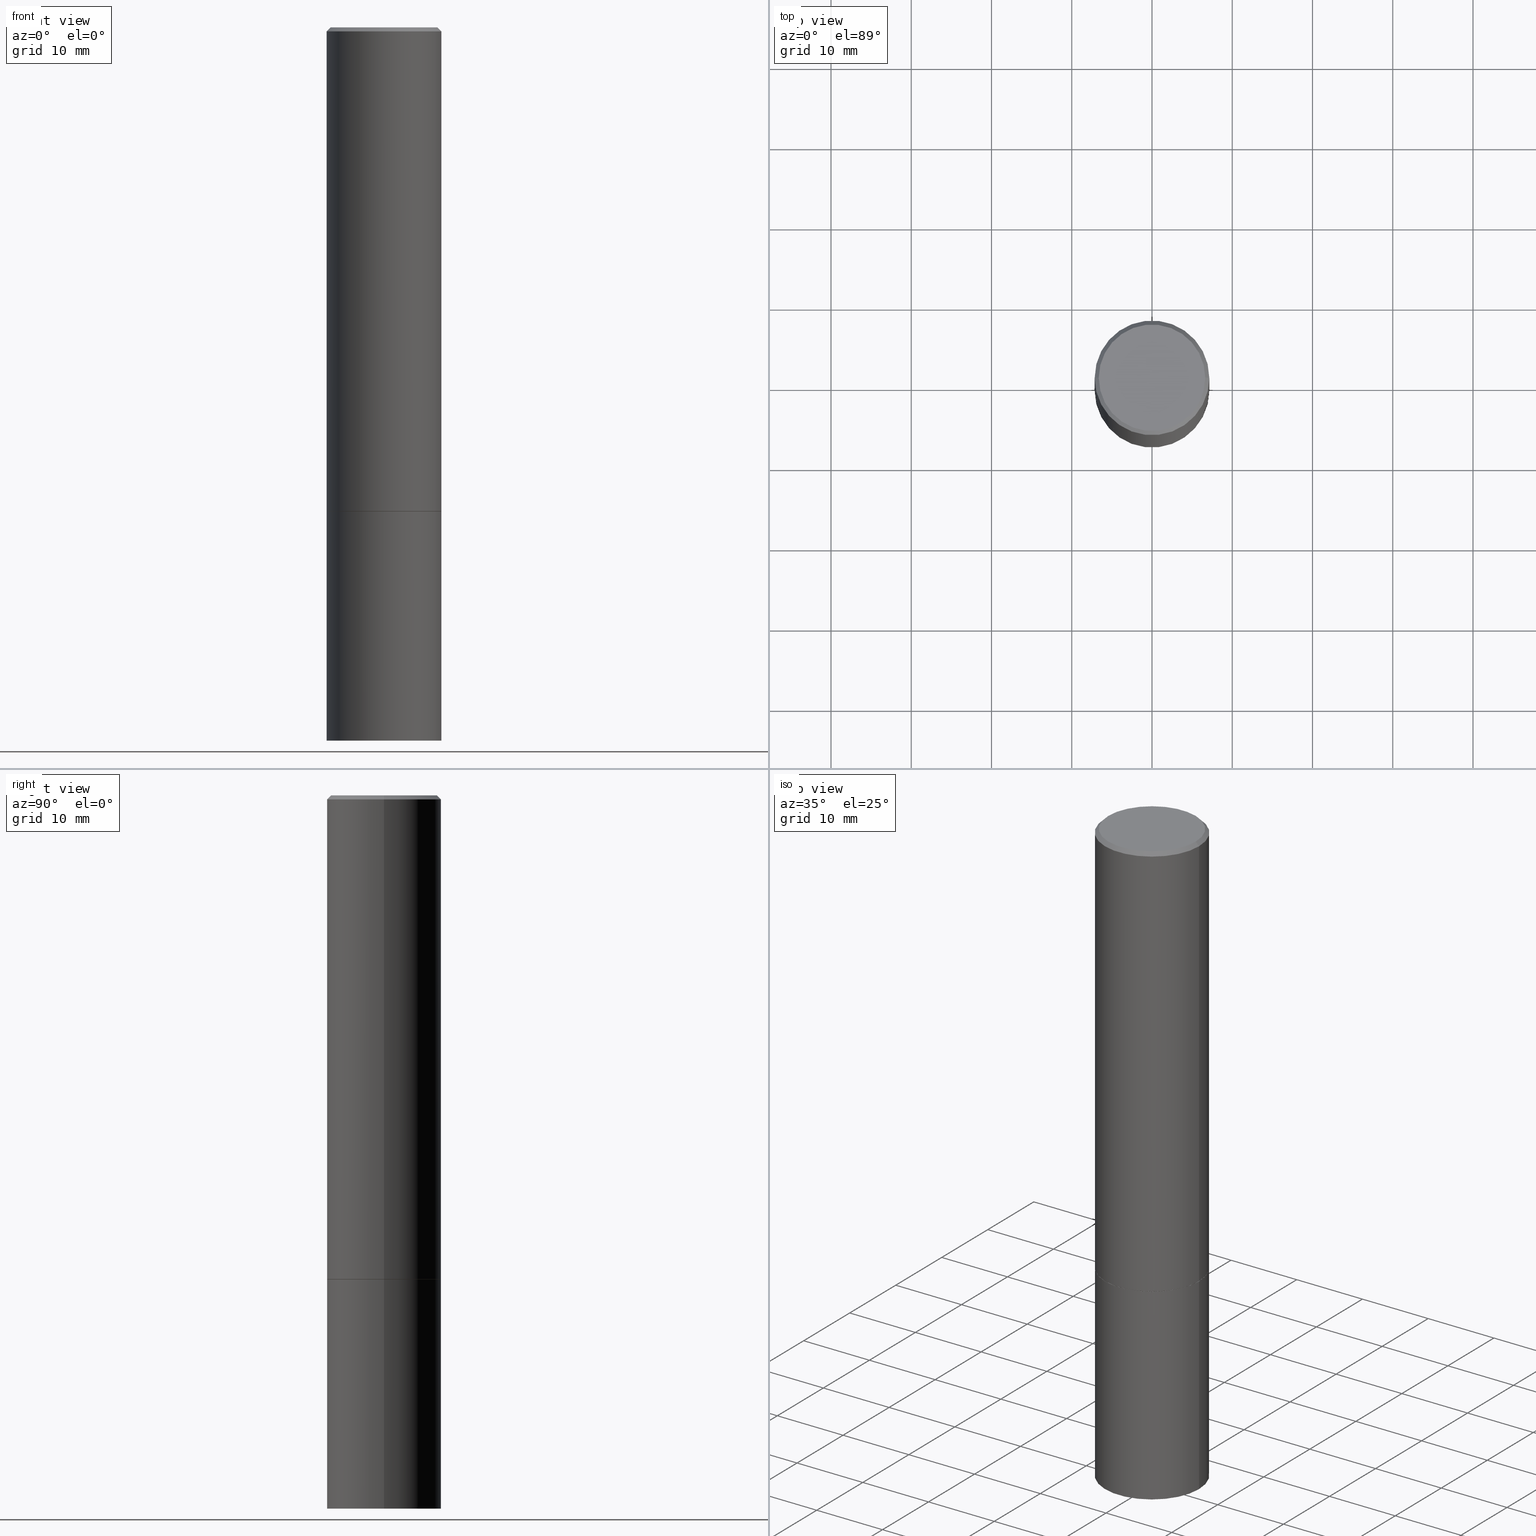
[diagram: canonical four-view strip — front | top / right | iso, engineering-drawing reading convention]
A machine part, canonical four-view strip (front | top / right | iso — engineering-drawing reading convention). The complete STEP part file that produces these views, byte-faithful:
ISO-10303-21;
HEADER;
FILE_DESCRIPTION (( 'STEP AP203' ),
    '1' );
FILE_NAME ('36827.STEP',
    '2024-02-27T19:54:21',
    ( '' ),
    ( '' ),
    'SwSTEP 2.0',
    'SolidWorks 2023',
    '' );
FILE_SCHEMA (( 'CONFIG_CONTROL_DESIGN' ));
ENDSEC;

DATA;
#1 = DIRECTION ( 'NONE',  ( -2.445468806185136597E-29, 3.491481338843145583E-15, 1.000000000000000000 ) ) ;
#2 = VERTEX_POINT ( 'NONE', #259 ) ;
#3 = DIRECTION ( 'NONE',  ( 1.000000000000000000, -6.982962677686266711E-15, 0.000000000000000000 ) ) ;
#4 = AXIS2_PLACEMENT_3D ( 'NONE', #233, #205, #292 ) ;
#5 = PRODUCT_DEFINITION ( 'UNKNOWN', '', #335, #55 ) ;
#6 = DIRECTION ( 'NONE',  ( -2.445468806185136597E-29, 3.491481338843145583E-15, 1.000000000000000000 ) ) ;
#7 = FACE_OUTER_BOUND ( 'NONE', #69, .T. ) ;
#8 = DIRECTION ( 'NONE',  ( 1.000000000000000000, -6.982962677686265922E-15, 0.000000000000000000 ) ) ;
#9 = AXIS2_PLACEMENT_3D ( 'NONE', #67, #46, #144 ) ;
#10 = CC_DESIGN_APPROVAL ( #178, ( #5 ) ) ;
#11 = CARTESIAN_POINT ( 'NONE',  ( 5.805542945883512693E-29, -8.288776698413625533E-15, -2.373999999999999222 ) ) ;
#12 = EDGE_CURVE ( 'NONE', #108, #171, #167, .T. ) ;
#13 = DIRECTION ( 'NONE',  ( 1.000000000000000000, 0.000000000000000000, 0.000000000000000000 ) ) ;
#14 = CARTESIAN_POINT ( 'NONE',  ( 0.000000000000000000, 0.000000000000000000, 0.000000000000000000 ) ) ;
#15 = ORIENTED_EDGE ( 'NONE', *, *, #65, .F. ) ;
#16 = CARTESIAN_POINT ( 'NONE',  ( 1.824298999545534733E-15, 0.2612499999999996492, -9.121494997727705218E-16 ) ) ;
#17 = COORDINATED_UNIVERSAL_TIME_OFFSET ( 5, 0, .BEHIND. ) ;
#18 = ORIENTED_EDGE ( 'NONE', *, *, #177, .T. ) ;
#19 = ORIENTED_EDGE ( 'NONE', *, *, #230, .T. ) ;
#20 = ORIENTED_EDGE ( 'NONE', *, *, #30, .T. ) ;
#21 = DIRECTION ( 'NONE',  ( 1.000000000000000000, -6.982962677686269866E-15, 0.000000000000000000 ) ) ;
#22 = CIRCLE ( 'NONE', #71, 0.2802499999999999991 ) ;
#23 = APPROVAL_STATUS ( 'not_yet_approved' ) ;
#24 = PRODUCT ( '36827', '36827', '', ( #276 ) ) ;
#25 = ORIENTED_EDGE ( 'NONE', *, *, #78, .F. ) ;
#26 = EDGE_CURVE ( 'NONE', #185, #2, #186, .T. ) ;
#27 = ORIENTED_EDGE ( 'NONE', *, *, #345, .F. ) ;
#28 = VECTOR ( 'NONE', #112, 39.37007874015748143 ) ;
#29 = CC_DESIGN_SECURITY_CLASSIFICATION ( #229, ( #335 ) ) ;
#30 = EDGE_CURVE ( 'NONE', #283, #171, #81, .T. ) ;
#31 = ORIENTED_EDGE ( 'NONE', *, *, #77, .F. ) ;
#32 = AXIS2_PLACEMENT_3D ( 'NONE', #80, #86, #180 ) ;
#33 = APPROVAL_PERSON_ORGANIZATION ( #278, #178, #50 ) ;
#34 = PERSON_AND_ORGANIZATION ( #268, #129 ) ;
#35 = CARTESIAN_POINT ( 'NONE',  ( 4.890937612370288047E-31, -6.982962677686311331E-17, -0.02000000000000005940 ) ) ;
#36 = CARTESIAN_POINT ( 'NONE',  ( 5.807988414689698296E-29, -8.292268179752468540E-15, -2.374999999999999556 ) ) ;
#37 = AXIS2_PLACEMENT_3D ( 'NONE', #116, #62, #298 ) ;
#38 = ORIENTED_EDGE ( 'NONE', *, *, #26, .F. ) ;
#39 = DIRECTION ( 'NONE',  ( -1.000000000000000000, 6.982962677686266711E-15, 0.000000000000000000 ) ) ;
#40 = AXIS2_PLACEMENT_3D ( 'NONE', #327, #277, #295 ) ;
#41 = DIRECTION ( 'NONE',  ( 1.000000000000000000, -6.982962677686269866E-15, 0.000000000000000000 ) ) ;
#42 = DIRECTION ( 'NONE',  ( -0.7071067811865232589, 7.493145998870265808E-15, 0.7071067811865715536 ) ) ;
#43 = PRODUCT_DEFINITION_SHAPE ( 'NONE', 'NONE',  #5 ) ;
#44 = FACE_OUTER_BOUND ( 'NONE', #342, .T. ) ;
#45 = DIRECTION ( 'NONE',  ( -2.445468806185136597E-29, 3.491481338843145583E-15, 1.000000000000000000 ) ) ;
#46 = DIRECTION ( 'NONE',  ( -2.445468806185136597E-29, 3.491481338843145583E-15, 1.000000000000000000 ) ) ;
#47 = PERSON_AND_ORGANIZATION_ROLE ( 'design_owner' ) ;
#48 = APPROVAL ( #143, 'UNSPECIFIED' ) ;
#49 = AXIS2_PLACEMENT_3D ( 'NONE', #362, #226, #102 ) ;
#50 = APPROVAL_ROLE ( '' ) ;
#51 = ORIENTED_EDGE ( 'NONE', *, *, #212, .F. ) ;
#52 = CIRCLE ( 'NONE', #159, 0.2812500000000000000 ) ;
#53 = ADVANCED_FACE ( 'NONE', ( #173 ), #288, .T. ) ;
#54 = ORIENTED_EDGE ( 'NONE', *, *, #319, .T. ) ;
#55 = DESIGN_CONTEXT ( 'detailed design', #208, 'design' ) ;
#56 = EDGE_CURVE ( 'NONE', #2, #267, #219, .T. ) ;
#57 = CLOSED_SHELL ( 'NONE', ( #265, #79, #231, #245 ) ) ;
#58 = COORDINATED_UNIVERSAL_TIME_OFFSET ( 5, 0, .BEHIND. ) ;
#59 = CARTESIAN_POINT ( 'NONE',  ( 4.890937612370288047E-31, -6.982962677686311331E-17, -0.02000000000000005940 ) ) ;
#60 = AXIS2_PLACEMENT_3D ( 'NONE', #254, #109, #222 ) ;
#61 = DIRECTION ( 'NONE',  ( -2.445468806185136597E-29, 3.491481338843145583E-15, 1.000000000000000000 ) ) ;
#62 = DIRECTION ( 'NONE',  ( 2.445468806185136597E-29, -3.491481338843145583E-15, -1.000000000000000000 ) ) ;
#63 = ORIENTED_EDGE ( 'NONE', *, *, #149, .F. ) ;
#64 = ORIENTED_EDGE ( 'NONE', *, *, #83, .F. ) ;
#65 = EDGE_CURVE ( 'NONE', #125, #223, #137, .T. ) ;
#66 = ORIENTED_EDGE ( 'NONE', *, *, #316, .T. ) ;
#67 = CARTESIAN_POINT ( 'NONE',  ( 0.000000000000000000, 0.000000000000000000, 0.000000000000000000 ) ) ;
#68 =( LENGTH_UNIT ( ) NAMED_UNIT ( * ) SI_UNIT ( $, .METRE. ) );
#69 = EDGE_LOOP ( 'NONE', ( #15, #104, #54, #209 ) ) ;
#70 = VECTOR ( 'NONE', #218, 39.37007874015748143 ) ;
#71 = AXIS2_PLACEMENT_3D ( 'NONE', #36, #322, #145 ) ;
#72 = ORIENTED_EDGE ( 'NONE', *, *, #56, .T. ) ;
#73 = ADVANCED_FACE ( 'NONE', ( #115 ), #264, .T. ) ;
#74 = CARTESIAN_POINT ( 'NONE',  ( 0.2802499999999999991, -1.024924347017404425E-14, -2.374999999999999556 ) ) ;
#75 = CIRCLE ( 'NONE', #293, 0.2812499999999996669 ) ;
#76 = APPROVAL_ROLE ( '' ) ;
#77 = EDGE_CURVE ( 'NONE', #171, #108, #88, .T. ) ;
#78 = EDGE_CURVE ( 'NONE', #309, #107, #242, .T. ) ;
#79 = ADVANCED_FACE ( 'NONE', ( #121 ), #359, .T. ) ;
#80 = CARTESIAN_POINT ( 'NONE',  ( 0.000000000000000000, 0.000000000000000000, 0.000000000000000000 ) ) ;
#81 = LINE ( 'NONE', #262, #28 ) ;
#82 = VECTOR ( 'NONE', #353, 39.37007874015748143 ) ;
#83 = EDGE_CURVE ( 'NONE', #223, #125, #350, .T. ) ;
#84 = CARTESIAN_POINT ( 'NONE',  ( 8.559140821647976968E-29, -1.222018468595100934E-14, -3.500000000000000000 ) ) ;
#85 = PERSON_AND_ORGANIZATION_ROLE ( 'creator' ) ;
#86 = DIRECTION ( 'NONE',  ( -2.445468806185136597E-29, 3.491481338843145583E-15, 1.000000000000000000 ) ) ;
#87 = DIRECTION ( 'NONE',  ( 1.000000000000000000, -6.982962677686269866E-15, 0.000000000000000000 ) ) ;
#88 = CIRCLE ( 'NONE', #363, 0.2812500000000000000 ) ;
#89 = APPROVAL_DATE_TIME ( #332, #178 ) ;
#90 = DIRECTION ( 'NONE',  ( 1.000000000000000000, -6.982962677686265922E-15, 0.000000000000000000 ) ) ;
#91 = ADVANCED_FACE ( 'NONE', ( #44 ), #157, .F. ) ;
#92 = DIRECTION ( 'NONE',  ( 1.000000000000000000, -6.982962677686265922E-15, 0.000000000000000000 ) ) ;
#93 = CARTESIAN_POINT ( 'NONE',  ( 0.2812499999999998335, -1.963958253099261329E-15, 1.371424718192606171E-29 ) ) ;
#94 = CARTESIAN_POINT ( 'NONE',  ( -0.2812499999999996669, 1.894128626322397242E-15, -0.02000000000000005940 ) ) ;
#95 = AXIS2_PLACEMENT_3D ( 'NONE', #16, #150, #189 ) ;
#96 = CC_DESIGN_PERSON_AND_ORGANIZATION_ASSIGNMENT ( #331, #47, ( #24 ) ) ;
#97 = DIRECTION ( 'NONE',  ( -1.000000000000000000, 6.982962677686265922E-15, -4.876176775795935793E-29 ) ) ;
#98 = CARTESIAN_POINT ( 'NONE',  ( 5.807988414689698296E-29, -8.292268179752468540E-15, -2.374999999999999556 ) ) ;
#99 =( CONVERSION_BASED_UNIT ( 'INCH', #251 ) LENGTH_UNIT ( ) NAMED_UNIT ( #176 ) );
#100 = CC_DESIGN_PERSON_AND_ORGANIZATION_ASSIGNMENT ( #136, #346, ( #335 ) ) ;
#101 = AXIS2_PLACEMENT_3D ( 'NONE', #351, #214, #330 ) ;
#102 = DIRECTION ( 'NONE',  ( 1.000000000000000000, -6.982962677686269866E-15, 0.000000000000000000 ) ) ;
#103 = DIRECTION ( 'NONE',  ( 2.438088387897960049E-29, -3.491481338843145188E-15, -1.000000000000000000 ) ) ;
#104 = ORIENTED_EDGE ( 'NONE', *, *, #149, .T. ) ;
#105 = CC_DESIGN_DATE_AND_TIME_ASSIGNMENT ( #204, #321, ( #229 ) ) ;
#106 = ADVANCED_FACE ( 'NONE', ( #274 ), #213, .T. ) ;
#107 = VERTEX_POINT ( 'NONE', #336 ) ;
#108 = VERTEX_POINT ( 'NONE', #225 ) ;
#109 = DIRECTION ( 'NONE',  ( -2.445468806185136597E-29, 3.491481338843145583E-15, 1.000000000000000000 ) ) ;
#110 = CIRCLE ( 'NONE', #349, 0.2812500000000000000 ) ;
#111 = CC_DESIGN_DATE_AND_TIME_ASSIGNMENT ( #207, #294, ( #5 ) ) ;
#112 = DIRECTION ( 'NONE',  ( -2.445468806185136877E-29, 3.491481338843145188E-15, 1.000000000000000000 ) ) ;
#113 = PERSON_AND_ORGANIZATION ( #268, #129 ) ;
#114 = CIRCLE ( 'NONE', #120, 0.2812499999999996669 ) ;
#115 = FACE_OUTER_BOUND ( 'NONE', #163, .T. ) ;
#116 = CARTESIAN_POINT ( 'NONE',  ( 4.890937612370288047E-31, -6.982962677686311331E-17, -0.02000000000000005940 ) ) ;
#117 = CARTESIAN_POINT ( 'NONE',  ( 5.807988414689698296E-29, -8.292268179752468540E-15, -2.374999999999999556 ) ) ;
#118 = DIRECTION ( 'NONE',  ( -2.445468806185136597E-29, 3.491481338843145583E-15, 1.000000000000000000 ) ) ;
#119 = APPLICATION_PROTOCOL_DEFINITION ( 'international standard', 'config_control_design', 1994, #314 ) ;
#120 = AXIS2_PLACEMENT_3D ( 'NONE', #304, #239, #3 ) ;
#121 = FACE_OUTER_BOUND ( 'NONE', #313, .T. ) ;
#122 = COORDINATED_UNIVERSAL_TIME_OFFSET ( 5, 0, .BEHIND. ) ;
#123 = ORIENTED_EDGE ( 'NONE', *, *, #65, .T. ) ;
#124 =( NAMED_UNIT ( * ) SI_UNIT ( $, .STERADIAN. ) SOLID_ANGLE_UNIT ( ) );
#125 = VERTEX_POINT ( 'NONE', #280 ) ;
#126 = ORIENTED_EDGE ( 'NONE', *, *, #193, .T. ) ;
#127 = MANIFOLD_SOLID_BREP ( 'Body-Move/Copy2[1]', #57 ) ;
#128 = CLOSED_SHELL ( 'NONE', ( #142, #53, #338, #302, #73, #106, #91, #206 ) ) ;
#129 = ORGANIZATION ( 'UNSPECIFIED', 'UNSPECIFIED', '' ) ;
#130 = CYLINDRICAL_SURFACE ( 'NONE', #60, 0.2812500000000000000 ) ;
#131 = ORIENTED_EDGE ( 'NONE', *, *, #179, .T. ) ;
#132 = FACE_OUTER_BOUND ( 'NONE', #307, .T. ) ;
#133 = CYLINDRICAL_SURFACE ( 'NONE', #140, 0.2812500000000000000 ) ;
#134 = CALENDAR_DATE ( 2024, 27, 2 ) ;
#135 = ORIENTED_EDGE ( 'NONE', *, *, #26, .T. ) ;
#136 = PERSON_AND_ORGANIZATION ( #268, #129 ) ;
#137 = CIRCLE ( 'NONE', #347, 0.2612499999999996492 ) ;
#138 = LOCAL_TIME ( 14, 54, 21.00000000000000000, #122 ) ;
#139 = CARTESIAN_POINT ( 'NONE',  ( 0.000000000000000000, 0.000000000000000000, 0.000000000000000000 ) ) ;
#140 = AXIS2_PLACEMENT_3D ( 'NONE', #139, #1, #221 ) ;
#141 = MANIFOLD_SOLID_BREP ( 'Body-Move/Copy2[2]', #128 ) ;
#142 = ADVANCED_FACE ( 'NONE', ( #238 ), #323, .T. ) ;
#143 = APPROVAL_STATUS ( 'not_yet_approved' ) ;
#144 = DIRECTION ( 'NONE',  ( 1.000000000000000000, -6.982962677686266711E-15, 4.876176775795934672E-29 ) ) ;
#145 = DIRECTION ( 'NONE',  ( 1.000000000000000000, -6.982962677686265922E-15, 0.000000000000000000 ) ) ;
#146 = VECTOR ( 'NONE', #317, 39.37007874015748143 ) ;
#147 = ORIENTED_EDGE ( 'NONE', *, *, #161, .F. ) ;
#148 = LINE ( 'NONE', #273, #82 ) ;
#149 = EDGE_CURVE ( 'NONE', #125, #107, #184, .T. ) ;
#150 = DIRECTION ( 'NONE',  ( 2.438088387897960049E-29, -3.491481338843145188E-15, -1.000000000000000000 ) ) ;
#151 = ORIENTED_EDGE ( 'NONE', *, *, #77, .T. ) ;
#152 = DIRECTION ( 'NONE',  ( -2.445468806185136597E-29, 3.491481338843145583E-15, 1.000000000000000000 ) ) ;
#153 =( NAMED_UNIT ( * ) PLANE_ANGLE_UNIT ( ) SI_UNIT ( $, .RADIAN. ) );
#154 = CARTESIAN_POINT ( 'NONE',  ( -0.2802499999999999991, -6.300972162784787775E-15, -2.374999999999999556 ) ) ;
#155 = UNCERTAINTY_MEASURE_WITH_UNIT (LENGTH_MEASURE( 1.000000000000000082E-05 ), #99, 'distance_accuracy_value', 'NONE');
#156 = PRODUCT_RELATED_PRODUCT_CATEGORY ( 'detail', '', ( #24 ) ) ;
#157 = PLANE ( 'NONE',  #40 ) ;
#158 = APPLICATION_PROTOCOL_DEFINITION ( 'international standard', 'config_control_design', 1994, #208 ) ;
#159 = AXIS2_PLACEMENT_3D ( 'NONE', #11, #210, #41 ) ;
#160 = CALENDAR_DATE ( 2024, 27, 2 ) ;
#161 = EDGE_CURVE ( 'NONE', #267, #309, #52, .T. ) ;
#162 = ORIENTED_EDGE ( 'NONE', *, *, #179, .F. ) ;
#163 = EDGE_LOOP ( 'NONE', ( #272, #361, #255, #348 ) ) ;
#164 = EDGE_CURVE ( 'NONE', #267, #165, #148, .T. ) ;
#165 = VERTEX_POINT ( 'NONE', #94 ) ;
#166 = EDGE_LOOP ( 'NONE', ( #310, #328, #131, #147 ) ) ;
#167 = CIRCLE ( 'NONE', #49, 0.2812500000000000000 ) ;
#168 = EDGE_LOOP ( 'NONE', ( #63, #64, #126, #19 ) ) ;
#169 = APPROVAL_PERSON_ORGANIZATION ( #343, #337, #76 ) ;
#170 = SHAPE_DEFINITION_REPRESENTATION ( #43, #203 ) ;
#171 = VERTEX_POINT ( 'NONE', #188 ) ;
#172 = AXIS2_PLACEMENT_3D ( 'NONE', #35, #291, #39 ) ;
#173 = FACE_OUTER_BOUND ( 'NONE', #364, .T. ) ;
#174 = CALENDAR_DATE ( 2024, 27, 2 ) ;
#175 = DIRECTION ( 'NONE',  ( 1.000000000000000000, -6.982962677686266711E-15, 0.000000000000000000 ) ) ;
#176 = DIMENSIONAL_EXPONENTS ( 1.000000000000000000, 0.000000000000000000, 0.000000000000000000, 0.000000000000000000, 0.000000000000000000, 0.000000000000000000, 0.000000000000000000 ) ;
#177 = EDGE_CURVE ( 'NONE', #309, #267, #110, .T. ) ;
#178 = APPROVAL ( #23, 'UNSPECIFIED' ) ;
#179 = EDGE_CURVE ( 'NONE', #185, #309, #243, .T. ) ;
#180 = DIRECTION ( 'NONE',  ( 1.000000000000000000, -6.982962677686266711E-15, 4.876176775795935793E-29 ) ) ;
#181 = FACE_OUTER_BOUND ( 'NONE', #168, .T. ) ;
#182 = CALENDAR_DATE ( 2024, 27, 2 ) ;
#183 = DIRECTION ( 'NONE',  ( -2.445468806185136597E-29, 3.491481338843145583E-15, 1.000000000000000000 ) ) ;
#184 = LINE ( 'NONE', #275, #70 ) ;
#185 = VERTEX_POINT ( 'NONE', #74 ) ;
#186 = CIRCLE ( 'NONE', #334, 0.2802499999999999991 ) ;
#187 = LOCAL_TIME ( 14, 54, 21.00000000000000000, #58 ) ;
#188 = CARTESIAN_POINT ( 'NONE',  ( 0.2812500000000000000, -1.025622643285173184E-14, -2.374999999999999556 ) ) ;
#189 = DIRECTION ( 'NONE',  ( -1.000000000000000000, 6.982962677686265922E-15, -4.876176775795935793E-29 ) ) ;
#190 = ORIENTED_EDGE ( 'NONE', *, *, #177, .F. ) ;
#191 = VECTOR ( 'NONE', #250, 39.37007874015748854 ) ;
#192 = CARTESIAN_POINT ( 'NONE',  ( -0.2812499999999996669, 1.894128626322397242E-15, -0.02000000000000005940 ) ) ;
#193 = EDGE_CURVE ( 'NONE', #223, #165, #358, .T. ) ;
#194 = VERTEX_POINT ( 'NONE', #305 ) ;
#195 = CARTESIAN_POINT ( 'NONE',  ( 0.000000000000000000, 0.000000000000000000, 0.000000000000000000 ) ) ;
#196 = ORIENTED_EDGE ( 'NONE', *, *, #12, .T. ) ;
#197 = CARTESIAN_POINT ( 'NONE',  ( -0.2812500000000000000, 1.998401444325281773E-15, -1.383450494134192269E-29 ) ) ;
#198 = DATE_AND_TIME ( #134, #187 ) ;
#199 = CONICAL_SURFACE ( 'NONE', #37, 0.2812499999999996669, 0.7853981633974473908 ) ;
#200 = ORIENTED_EDGE ( 'NONE', *, *, #12, .F. ) ;
#201 = COORDINATED_UNIVERSAL_TIME_OFFSET ( 5, 0, .BEHIND. ) ;
#202 = ORIENTED_EDGE ( 'NONE', *, *, #164, .T. ) ;
#203 = ADVANCED_BREP_SHAPE_REPRESENTATION ( '36827', ( #127, #141, #329 ), #261 ) ;
#204 = DATE_AND_TIME ( #174, #324 ) ;
#205 = DIRECTION ( 'NONE',  ( -2.445468806185136597E-29, 3.491481338843145583E-15, 1.000000000000000000 ) ) ;
#206 = ADVANCED_FACE ( 'NONE', ( #360 ), #325, .F. ) ;
#207 = DATE_AND_TIME ( #182, #220 ) ;
#208 = APPLICATION_CONTEXT ( 'configuration controlled 3d designs of mechanical parts and assemblies' ) ;
#209 = ORIENTED_EDGE ( 'NONE', *, *, #193, .F. ) ;
#210 = DIRECTION ( 'NONE',  ( -2.445468806185136597E-29, 3.491481338843145583E-15, 1.000000000000000000 ) ) ;
#211 = CC_DESIGN_PERSON_AND_ORGANIZATION_ASSIGNMENT ( #34, #263, ( #335 ) ) ;
#212 = EDGE_CURVE ( 'NONE', #283, #194, #286, .T. ) ;
#213 = CONICAL_SURFACE ( 'NONE', #306, 0.2802499999999999991, 0.7853981633974141952 ) ;
#214 = DIRECTION ( 'NONE',  ( -2.445468806185136597E-29, 3.491481338843145583E-15, 1.000000000000000000 ) ) ;
#215 = EDGE_LOOP ( 'NONE', ( #252, #352, #31, #241 ) ) ;
#216 = DIRECTION ( 'NONE',  ( -0.7071067811865469066, 2.468850131082250355E-15, -0.7071067811865481278 ) ) ;
#217 = DIRECTION ( 'NONE',  ( -2.445468806185136877E-29, 3.491481338843145188E-15, 1.000000000000000000 ) ) ;
#218 = DIRECTION ( 'NONE',  ( 0.7071067811865469066, -7.319954787623254468E-15, -0.7071067811865481278 ) ) ;
#219 = LINE ( 'NONE', #154, #232 ) ;
#220 = LOCAL_TIME ( 14, 54, 21.00000000000000000, #17 ) ;
#221 = DIRECTION ( 'NONE',  ( 1.000000000000000000, -6.982962677686266711E-15, 4.876176775795935793E-29 ) ) ;
#222 = DIRECTION ( 'NONE',  ( 1.000000000000000000, -6.982962677686266711E-15, 4.876176775795935793E-29 ) ) ;
#223 = VERTEX_POINT ( 'NONE', #357 ) ;
#224 = APPROVAL_STATUS ( 'not_yet_approved' ) ;
#225 = CARTESIAN_POINT ( 'NONE',  ( -0.2812500000000000000, -8.257824988526456379E-15, -2.374999999999999556 ) ) ;
#226 = DIRECTION ( 'NONE',  ( -2.445468806185136597E-29, 3.491481338843145583E-15, 1.000000000000000000 ) ) ;
#227 = APPROVAL_DATE_TIME ( #289, #48 ) ;
#228 = CONICAL_SURFACE ( 'NONE', #172, 0.2812499999999996669, 0.7853981633974473908 ) ;
#229 = SECURITY_CLASSIFICATION ( '', '', #318 ) ;
#230 = EDGE_CURVE ( 'NONE', #165, #107, #114, .T. ) ;
#231 = ADVANCED_FACE ( 'NONE', ( #132 ), #253, .F. ) ;
#232 = VECTOR ( 'NONE', #42, 39.37007874015748854 ) ;
#233 = CARTESIAN_POINT ( 'NONE',  ( 0.000000000000000000, 0.000000000000000000, 0.000000000000000000 ) ) ;
#234 = DIRECTION ( 'NONE',  ( -2.445468806185136597E-29, 3.491481338843145583E-15, 1.000000000000000000 ) ) ;
#235 = PERSON_AND_ORGANIZATION ( #268, #129 ) ;
#236 = ORIENTED_EDGE ( 'NONE', *, *, #319, .F. ) ;
#237 = CC_DESIGN_APPROVAL ( #337, ( #229 ) ) ;
#238 = FACE_OUTER_BOUND ( 'NONE', #240, .T. ) ;
#239 = DIRECTION ( 'NONE',  ( -2.445468806185136597E-29, 3.491481338843145583E-15, 1.000000000000000000 ) ) ;
#240 = EDGE_LOOP ( 'NONE', ( #135, #72, #190, #162 ) ) ;
#241 = ORIENTED_EDGE ( 'NONE', *, *, #30, .F. ) ;
#242 = LINE ( 'NONE', #93, #279 ) ;
#243 = LINE ( 'NONE', #356, #191 ) ;
#244 = AXIS2_PLACEMENT_3D ( 'NONE', #84, #234, #87 ) ;
#245 = ADVANCED_FACE ( 'NONE', ( #257 ), #130, .T. ) ;
#246 = DIRECTION ( 'NONE',  ( 1.000000000000000000, -6.982962677686269866E-15, 0.000000000000000000 ) ) ;
#247 = CALENDAR_DATE ( 2024, 27, 2 ) ;
#248 = ORIENTED_EDGE ( 'NONE', *, *, #316, .F. ) ;
#249 = EDGE_CURVE ( 'NONE', #194, #108, #341, .T. ) ;
#250 = DIRECTION ( 'NONE',  ( 0.7071067811865232589, -2.468850131082003836E-15, 0.7071067811865715536 ) ) ;
#251 = LENGTH_MEASURE_WITH_UNIT ( LENGTH_MEASURE( 0.02539999999999999897 ), #68 );
#252 = ORIENTED_EDGE ( 'NONE', *, *, #212, .T. ) ;
#253 = PLANE ( 'NONE',  #315 ) ;
#254 = CARTESIAN_POINT ( 'NONE',  ( 0.000000000000000000, 0.000000000000000000, 0.000000000000000000 ) ) ;
#255 = ORIENTED_EDGE ( 'NONE', *, *, #78, .T. ) ;
#256 = CARTESIAN_POINT ( 'NONE',  ( 5.807988414689698296E-29, -8.292268179752468540E-15, -2.374999999999999556 ) ) ;
#257 = FACE_OUTER_BOUND ( 'NONE', #326, .T. ) ;
#258 = APPROVAL_DATE_TIME ( #198, #337 ) ;
#259 = CARTESIAN_POINT ( 'NONE',  ( -0.2802499999999999991, -6.295673708436564585E-15, -2.374999999999999556 ) ) ;
#260 = AXIS2_PLACEMENT_3D ( 'NONE', #98, #45, #90 ) ;
#261 =( GEOMETRIC_REPRESENTATION_CONTEXT ( 3 ) GLOBAL_UNCERTAINTY_ASSIGNED_CONTEXT ( ( #155 ) ) GLOBAL_UNIT_ASSIGNED_CONTEXT ( ( #99, #153, #124 ) ) REPRESENTATION_CONTEXT ( 'NONE', 'WORKASPACE' ) );
#262 = CARTESIAN_POINT ( 'NONE',  ( 0.2812500000000000000, -1.963958253099262512E-15, 1.371424718192607012E-29 ) ) ;
#263 = PERSON_AND_ORGANIZATION_ROLE ( 'design_supplier' ) ;
#264 = CYLINDRICAL_SURFACE ( 'NONE', #32, 0.2812499999999998335 ) ;
#265 = ADVANCED_FACE ( 'NONE', ( #284 ), #133, .T. ) ;
#266 = DIRECTION ( 'NONE',  ( 2.438088387897960049E-29, -3.491481338843145188E-15, -1.000000000000000000 ) ) ;
#267 = VERTEX_POINT ( 'NONE', #366 ) ;
#268 = PERSON ( 'UNSPECIFIED', 'UNSPECIFIED', 'UNSPECIFIED', ('UNSPECIFIED'), ('UNSPECIFIED'), ('UNSPECIFIED') ) ;
#269 = APPROVAL_ROLE ( '' ) ;
#270 = VECTOR ( 'NONE', #216, 39.37007874015748143 ) ;
#271 = CC_DESIGN_PERSON_AND_ORGANIZATION_ASSIGNMENT ( #113, #365, ( #229 ) ) ;
#272 = ORIENTED_EDGE ( 'NONE', *, *, #164, .F. ) ;
#273 = CARTESIAN_POINT ( 'NONE',  ( -0.2812499999999998335, 1.998401444325280589E-15, -1.383450494134191428E-29 ) ) ;
#274 = FACE_OUTER_BOUND ( 'NONE', #166, .T. ) ;
#275 = CARTESIAN_POINT ( 'NONE',  ( 0.2812499999999996669, -1.999344688650103789E-15, -0.02000000000000005940 ) ) ;
#276 = MECHANICAL_CONTEXT ( 'NONE', #314, 'mechanical' ) ;
#277 = DIRECTION ( 'NONE',  ( -2.438088387897960049E-29, 3.491481338843145188E-15, 1.000000000000000000 ) ) ;
#278 = PERSON_AND_ORGANIZATION ( #268, #129 ) ;
#279 = VECTOR ( 'NONE', #217, 39.37007874015748143 ) ;
#280 = CARTESIAN_POINT ( 'NONE',  ( 0.2612499999999996492, -1.895824895283957203E-15, 1.300802449975685690E-29 ) ) ;
#281 = CARTESIAN_POINT ( 'NONE',  ( 1.963958253099320494E-15, 0.2812499999999917288, -2.375000000000000444 ) ) ;
#282 = AXIS2_PLACEMENT_3D ( 'NONE', #297, #266, #97 ) ;
#283 = VERTEX_POINT ( 'NONE', #339 ) ;
#284 = FACE_OUTER_BOUND ( 'NONE', #215, .T. ) ;
#285 = CC_DESIGN_PERSON_AND_ORGANIZATION_ASSIGNMENT ( #235, #85, ( #5 ) ) ;
#286 = CIRCLE ( 'NONE', #101, 0.2812500000000000000 ) ;
#287 = CC_DESIGN_APPROVAL ( #48, ( #335 ) ) ;
#288 = CYLINDRICAL_SURFACE ( 'NONE', #4, 0.2812499999999998335 ) ;
#289 = DATE_AND_TIME ( #160, #355 ) ;
#290 = DIRECTION ( 'NONE',  ( 1.000000000000000000, -6.982962677686266711E-15, 4.876176775795934672E-29 ) ) ;
#291 = DIRECTION ( 'NONE',  ( 2.445468806185136597E-29, -3.491481338843145583E-15, -1.000000000000000000 ) ) ;
#292 = DIRECTION ( 'NONE',  ( 1.000000000000000000, -6.982962677686266711E-15, 4.876176775795935793E-29 ) ) ;
#293 = AXIS2_PLACEMENT_3D ( 'NONE', #59, #61, #175 ) ;
#294 = DATE_TIME_ROLE ( 'creation_date' ) ;
#295 = DIRECTION ( 'NONE',  ( 1.000000000000000000, -6.982962677686265922E-15, 4.876176775795935793E-29 ) ) ;
#296 = PERSON_AND_ORGANIZATION ( #268, #129 ) ;
#297 = CARTESIAN_POINT ( 'NONE',  ( 1.963958253099348104E-15, 0.2812499999999877875, -3.500000000000000888 ) ) ;
#298 = DIRECTION ( 'NONE',  ( -1.000000000000000000, 6.982962677686266711E-15, 0.000000000000000000 ) ) ;
#299 = ORIENTED_EDGE ( 'NONE', *, *, #249, .F. ) ;
#300 = APPROVAL_PERSON_ORGANIZATION ( #296, #48, #269 ) ;
#301 = CARTESIAN_POINT ( 'NONE',  ( 5.805542945883512693E-29, -8.288776698413625533E-15, -2.373999999999999222 ) ) ;
#302 = ADVANCED_FACE ( 'NONE', ( #181 ), #199, .T. ) ;
#303 = CARTESIAN_POINT ( 'NONE',  ( 5.807988414689698296E-29, -8.292268179752468540E-15, -2.374999999999999556 ) ) ;
#304 = CARTESIAN_POINT ( 'NONE',  ( 4.890937612370288047E-31, -6.982962677686311331E-17, -0.02000000000000005940 ) ) ;
#305 = CARTESIAN_POINT ( 'NONE',  ( -0.2812500000000000000, -8.257824988526456379E-15, -3.500000000000000000 ) ) ;
#306 = AXIS2_PLACEMENT_3D ( 'NONE', #117, #6, #92 ) ;
#307 = EDGE_LOOP ( 'NONE', ( #151, #196 ) ) ;
#308 = DIRECTION ( 'NONE',  ( 0.000000000000000000, 0.000000000000000000, 1.000000000000000000 ) ) ;
#309 = VERTEX_POINT ( 'NONE', #320 ) ;
#310 = ORIENTED_EDGE ( 'NONE', *, *, #56, .F. ) ;
#311 = DIRECTION ( 'NONE',  ( -1.000000000000000000, 6.982962677686265922E-15, -4.876176775795935793E-29 ) ) ;
#312 = COORDINATED_UNIVERSAL_TIME_OFFSET ( 5, 0, .BEHIND. ) ;
#313 = EDGE_LOOP ( 'NONE', ( #51, #248 ) ) ;
#314 = APPLICATION_CONTEXT ( 'configuration controlled 3d designs of mechanical parts and assemblies' ) ;
#315 = AXIS2_PLACEMENT_3D ( 'NONE', #281, #103, #311 ) ;
#316 = EDGE_CURVE ( 'NONE', #194, #283, #354, .T. ) ;
#317 = DIRECTION ( 'NONE',  ( -2.445468806185136877E-29, 3.491481338843145188E-15, 1.000000000000000000 ) ) ;
#318 = SECURITY_CLASSIFICATION_LEVEL ( 'unclassified' ) ;
#319 = EDGE_CURVE ( 'NONE', #107, #165, #75, .T. ) ;
#320 = CARTESIAN_POINT ( 'NONE',  ( 0.2812500000000000000, -1.025273495151288883E-14, -2.373999999999999222 ) ) ;
#321 = DATE_TIME_ROLE ( 'classification_date' ) ;
#322 = DIRECTION ( 'NONE',  ( -2.445468806185136597E-29, 3.491481338843145583E-15, 1.000000000000000000 ) ) ;
#323 = CONICAL_SURFACE ( 'NONE', #260, 0.2802499999999999991, 0.7853981633974141952 ) ;
#324 = LOCAL_TIME ( 14, 54, 21.00000000000000000, #201 ) ;
#325 = PLANE ( 'NONE',  #95 ) ;
#326 = EDGE_LOOP ( 'NONE', ( #299, #66, #20, #200 ) ) ;
#327 = CARTESIAN_POINT ( 'NONE',  ( 5.807988414689698296E-29, -8.292268179752468540E-15, -2.374999999999999556 ) ) ;
#328 = ORIENTED_EDGE ( 'NONE', *, *, #345, .T. ) ;
#329 = AXIS2_PLACEMENT_3D ( 'NONE', #195, #308, #13 ) ;
#330 = DIRECTION ( 'NONE',  ( 1.000000000000000000, -6.982962677686269866E-15, 0.000000000000000000 ) ) ;
#331 = PERSON_AND_ORGANIZATION ( #268, #129 ) ;
#332 = DATE_AND_TIME ( #247, #138 ) ;
#333 = ORIENTED_EDGE ( 'NONE', *, *, #83, .T. ) ;
#334 = AXIS2_PLACEMENT_3D ( 'NONE', #256, #344, #8 ) ;
#335 = PRODUCT_DEFINITION_FORMATION_WITH_SPECIFIED_SOURCE ( 'ANY', '', #24, .NOT_KNOWN. ) ;
#336 = CARTESIAN_POINT ( 'NONE',  ( 0.2812499999999996669, -1.999344688650103789E-15, -0.02000000000000005940 ) ) ;
#337 = APPROVAL ( #224, 'UNSPECIFIED' ) ;
#338 = ADVANCED_FACE ( 'NONE', ( #7 ), #228, .T. ) ;
#339 = CARTESIAN_POINT ( 'NONE',  ( 0.2812500000000000000, -1.418414293905027264E-14, -3.500000000000000000 ) ) ;
#340 = EDGE_LOOP ( 'NONE', ( #333, #123 ) ) ;
#341 = LINE ( 'NONE', #197, #146 ) ;
#342 = EDGE_LOOP ( 'NONE', ( #38, #27 ) ) ;
#343 = PERSON_AND_ORGANIZATION ( #268, #129 ) ;
#344 = DIRECTION ( 'NONE',  ( -2.445468806185136597E-29, 3.491481338843145583E-15, 1.000000000000000000 ) ) ;
#345 = EDGE_CURVE ( 'NONE', #2, #185, #22, .T. ) ;
#346 = PERSON_AND_ORGANIZATION_ROLE ( 'creator' ) ;
#347 = AXIS2_PLACEMENT_3D ( 'NONE', #14, #118, #290 ) ;
#348 = ORIENTED_EDGE ( 'NONE', *, *, #230, .F. ) ;
#349 = AXIS2_PLACEMENT_3D ( 'NONE', #301, #152, #21 ) ;
#350 = CIRCLE ( 'NONE', #9, 0.2612499999999996492 ) ;
#351 = CARTESIAN_POINT ( 'NONE',  ( 8.559140821647976968E-29, -1.222018468595100934E-14, -3.500000000000000000 ) ) ;
#352 = ORIENTED_EDGE ( 'NONE', *, *, #249, .T. ) ;
#353 = DIRECTION ( 'NONE',  ( -2.445468806185136877E-29, 3.491481338843145188E-15, 1.000000000000000000 ) ) ;
#354 = CIRCLE ( 'NONE', #244, 0.2812500000000000000 ) ;
#355 = LOCAL_TIME ( 14, 54, 21.00000000000000000, #312 ) ;
#356 = CARTESIAN_POINT ( 'NONE',  ( 0.2802499999999999991, -1.024924347017404425E-14, -2.374999999999999556 ) ) ;
#357 = CARTESIAN_POINT ( 'NONE',  ( -0.2612499999999996492, 1.859213812933965987E-15, -1.288019758893701349E-29 ) ) ;
#358 = LINE ( 'NONE', #192, #270 ) ;
#359 = PLANE ( 'NONE',  #282 ) ;
#360 = FACE_OUTER_BOUND ( 'NONE', #340, .T. ) ;
#361 = ORIENTED_EDGE ( 'NONE', *, *, #161, .T. ) ;
#362 = CARTESIAN_POINT ( 'NONE',  ( 5.807988414689698296E-29, -8.292268179752468540E-15, -2.374999999999999556 ) ) ;
#363 = AXIS2_PLACEMENT_3D ( 'NONE', #303, #183, #246 ) ;
#364 = EDGE_LOOP ( 'NONE', ( #18, #202, #236, #25 ) ) ;
#365 = PERSON_AND_ORGANIZATION_ROLE ( 'classification_officer' ) ;
#366 = CARTESIAN_POINT ( 'NONE',  ( -0.2812500000000000000, -2.180901718269959487E-15, -2.373999999999999222 ) ) ;
ENDSEC;
END-ISO-10303-21;
